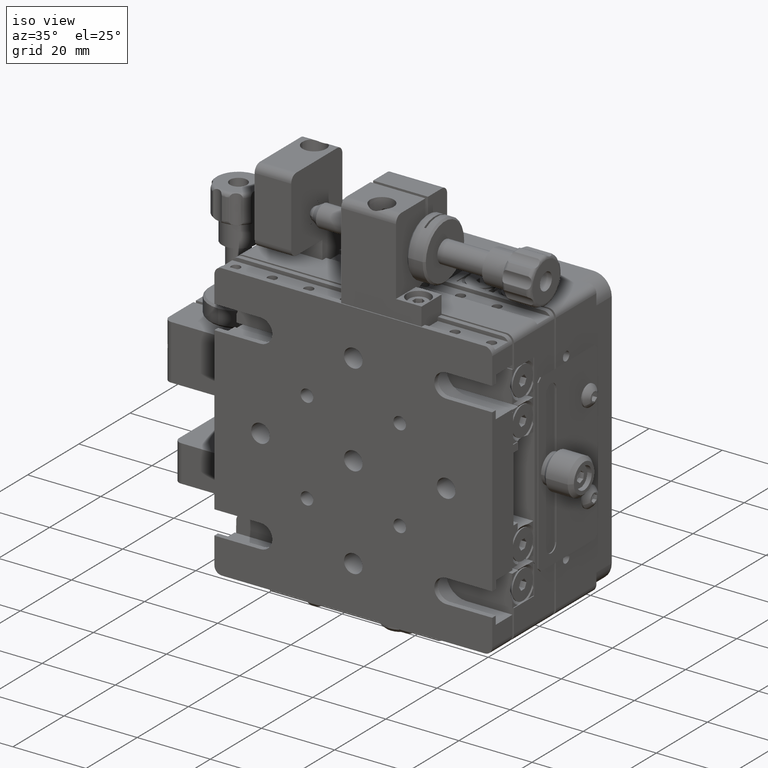
[diagram: clean part render]
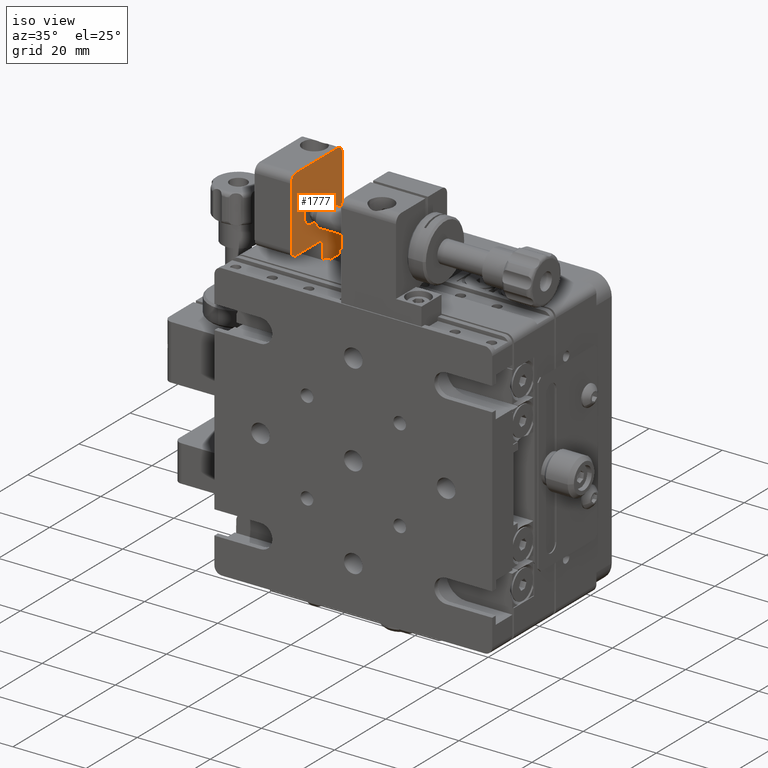
[diagram: same view with one face highlighted and labeled with its STEP entity id]
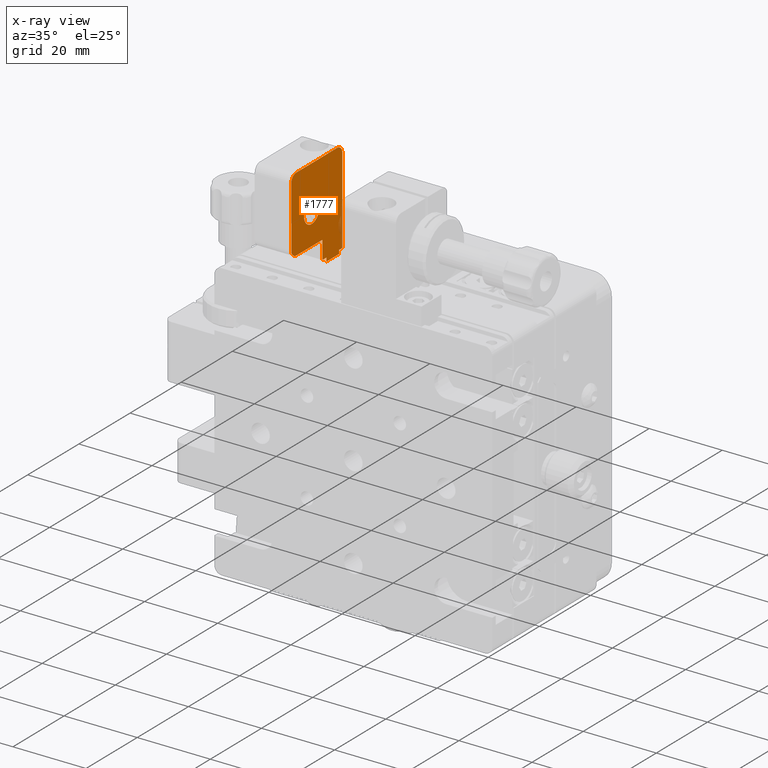
[diagram: x-ray of the same camera — body ghosted, the highlighted face saturated]
A machine part, iso view. The second image highlights one B-rep face of the part: STEP entity #1777.
The next image is the same camera in x-ray: the body ghosted, the highlighted face saturated — about 2% of this face is hidden behind the body in this view.
In plain terms, the highlighted planar face has unit normal (1, -0, -0).
Its self-contained STEP definition (entity closure, byte-faithful):
#672 = DIRECTION ( 'NONE',  ( 1.000000000000000000, -1.110223024625156000E-016, -7.227914031693551900E-019 ) ) ;
#954 = DIRECTION ( 'NONE',  ( 7.227914031695526000E-019, -5.965587692102110000E-016, 1.000000000000000000 ) ) ;
#1330 = CARTESIAN_POINT ( 'NONE',  ( -2.909046113412277400, 3.020726745679874100, 141.1500000000002300 ) ) ;
#1719 = DIRECTION ( 'NONE',  ( 0.0000000000000000000, -8.673617379884027600E-016, 1.000000000000000000 ) ) ;
#1777 = ADVANCED_FACE ( 'NONE', ( #42920, #32633 ), #26873, .T. ) ;
#2042 = CARTESIAN_POINT ( 'NONE',  ( -2.909046113412277400, -3.479273254320129000, 141.1500000000002300 ) ) ;
#2824 = VECTOR ( 'NONE', #44409, 1000.000000000000000 ) ;
#3341 = CARTESIAN_POINT ( 'NONE',  ( -2.909046113412276500, 4.320726745679887200, 141.1500000000002300 ) ) ;
#3927 = VERTEX_POINT ( 'NONE', #50291 ) ;
#4154 = VECTOR ( 'NONE', #12270, 1000.000000000000000 ) ;
#4274 = ORIENTED_EDGE ( 'NONE', *, *, #7773, .T. ) ;
#4822 = VERTEX_POINT ( 'NONE', #35021 ) ;
#4875 = ORIENTED_EDGE ( 'NONE', *, *, #24657, .T. ) ;
#4979 = DIRECTION ( 'NONE',  ( -7.227914031695526000E-019, 5.965587692102110000E-016, -1.000000000000000000 ) ) ;
#5048 = VERTEX_POINT ( 'NONE', #44249 ) ;
#5095 = EDGE_CURVE ( 'NONE', #14420, #4822, #13902, .T. ) ;
#5223 = CARTESIAN_POINT ( 'NONE',  ( -2.909046113412277800, -7.679273254320126100, 154.6500000000002000 ) ) ;
#5717 = EDGE_CURVE ( 'NONE', #17093, #35727, #47072, .T. ) ;
#5990 = VERTEX_POINT ( 'NONE', #6583 ) ;
#6583 = CARTESIAN_POINT ( 'NONE',  ( -2.909046113412278700, -13.67927325432013500, 166.6500000000001800 ) ) ;
#7512 = VECTOR ( 'NONE', #14265, 1000.000000000000000 ) ;
#7773 = EDGE_CURVE ( 'NONE', #5990, #19997, #13235, .T. ) ;
#7996 = EDGE_CURVE ( 'NONE', #28252, #14420, #39973, .T. ) ;
#8300 = LINE ( 'NONE', #28113, #18641 ) ;
#9108 = DIRECTION ( 'NONE',  ( 0.0000000000000000000, -5.782411586589351700E-016, 1.000000000000000000 ) ) ;
#9135 = VERTEX_POINT ( 'NONE', #1330 ) ;
#9166 = ORIENTED_EDGE ( 'NONE', *, *, #7996, .T. ) ;
#10218 = ORIENTED_EDGE ( 'NONE', *, *, #20978, .F. ) ;
#10355 = ORIENTED_EDGE ( 'NONE', *, *, #28498, .T. ) ;
#10460 = AXIS2_PLACEMENT_3D ( 'NONE', #15537, #42578, #19438 ) ;
#10980 = EDGE_CURVE ( 'NONE', #35727, #5990, #11045, .T. ) ;
#11045 = LINE ( 'NONE', #16248, #40751 ) ;
#11559 = CARTESIAN_POINT ( 'NONE',  ( -2.909046113412278700, -13.67927325432013300, 164.6500000000002000 ) ) ;
#11711 = ORIENTED_EDGE ( 'NONE', *, *, #12695, .T. ) ;
#12270 = DIRECTION ( 'NONE',  ( 1.110223024625154800E-016, 1.000000000000000000, 1.984337549991656100E-015 ) ) ;
#12345 = CARTESIAN_POINT ( 'NONE',  ( -2.909046113412277400, -1.979273254320128600, 141.1500000000001500 ) ) ;
#12695 = EDGE_CURVE ( 'NONE', #27006, #28252, #17827, .T. ) ;
#13235 = CIRCLE ( 'NONE', #10460, 2.000000000000001800 ) ;
#13371 = CARTESIAN_POINT ( 'NONE',  ( -2.909046113412278700, -15.67927325432013100, 164.6500000000001800 ) ) ;
#13859 = CARTESIAN_POINT ( 'NONE',  ( -2.909046113412276500, 4.320726745679887200, 141.1500000000002300 ) ) ;
#13902 = LINE ( 'NONE', #2042, #43596 ) ;
#14265 = DIRECTION ( 'NONE',  ( 7.227914031695526000E-019, -5.965587692102110000E-016, 1.000000000000000000 ) ) ;
#14420 = VERTEX_POINT ( 'NONE', #37475 ) ;
#14576 = ORIENTED_EDGE ( 'NONE', *, *, #5095, .T. ) ;
#15111 = CARTESIAN_POINT ( 'NONE',  ( -2.909046113412278700, -13.67927325432012300, 146.1500000000002000 ) ) ;
#15515 = DIRECTION ( 'NONE',  ( 7.227914031695526000E-019, -5.965587692102110000E-016, 1.000000000000000000 ) ) ;
#15537 = CARTESIAN_POINT ( 'NONE',  ( -2.909046113412278700, -13.67927325432013300, 164.6500000000002000 ) ) ;
#16160 = CARTESIAN_POINT ( 'NONE',  ( -2.909046113412276500, 4.320726745679873000, 164.6500000000001500 ) ) ;
#16248 = CARTESIAN_POINT ( 'NONE',  ( -2.909046113412277400, 2.320726745679869900, 166.6500000000001500 ) ) ;
#16264 = LINE ( 'NONE', #22632, #45956 ) ;
#16572 = EDGE_CURVE ( 'NONE', #4822, #22344, #16264, .T. ) ;
#16582 = DIRECTION ( 'NONE',  ( -1.110223024625154800E-016, -1.000000000000000000, 2.981308399991953000E-015 ) ) ;
#17093 = VERTEX_POINT ( 'NONE', #16160 ) ;
#17296 = CARTESIAN_POINT ( 'NONE',  ( -2.909046113412277800, -7.679273254320124300, 151.6500000000002000 ) ) ;
#17730 = EDGE_CURVE ( 'NONE', #44006, #17093, #8300, .T. ) ;
#17827 = CIRCLE ( 'NONE', #32901, 2.000000000000001800 ) ;
#18641 = VECTOR ( 'NONE', #954, 1000.000000000000000 ) ;
#19438 = DIRECTION ( 'NONE',  ( 0.0000000000000000000, -8.673617379884027600E-016, 1.000000000000000000 ) ) ;
#19521 = VERTEX_POINT ( 'NONE', #40635 ) ;
#19997 = VERTEX_POINT ( 'NONE', #48712 ) ;
#20607 = EDGE_CURVE ( 'NONE', #19521, #9135, #38447, .T. ) ;
#20978 = EDGE_CURVE ( 'NONE', #48695, #5048, #44419, .T. ) ;
#21542 = DIRECTION ( 'NONE',  ( 1.000000000000000000, -1.110223024625156000E-016, -7.227914031693551900E-019 ) ) ;
#21783 = EDGE_CURVE ( 'NONE', #22344, #3927, #23085, .T. ) ;
#21844 = VECTOR ( 'NONE', #4979, 1000.000000000000000 ) ;
#22344 = VERTEX_POINT ( 'NONE', #12345 ) ;
#22577 = AXIS2_PLACEMENT_3D ( 'NONE', #5223, #32326, #9108 ) ;
#22632 = CARTESIAN_POINT ( 'NONE',  ( -2.909046113412277400, -3.479273254320129000, 141.1500000000002300 ) ) ;
#23085 = LINE ( 'NONE', #32228, #21844 ) ;
#23509 = EDGE_CURVE ( 'NONE', #5048, #48695, #36012, .T. ) ;
#23930 = CARTESIAN_POINT ( 'NONE',  ( -2.909046113412277400, 2.320726745679871700, 164.6500000000001500 ) ) ;
#24657 = EDGE_CURVE ( 'NONE', #3927, #19521, #30247, .T. ) ;
#25010 = DIRECTION ( 'NONE',  ( 1.000000000000000000, -1.110223024625156000E-016, -7.227914031693551900E-019 ) ) ;
#25397 = EDGE_CURVE ( 'NONE', #19997, #27006, #33817, .T. ) ;
#25981 = EDGE_LOOP ( 'NONE', ( #45462, #10218 ) ) ;
#26338 = CARTESIAN_POINT ( 'NONE',  ( -2.909046113412277400, 2.320726745679869900, 166.6500000000001500 ) ) ;
#26873 = PLANE ( 'NONE',  #35576 ) ;
#26907 = ORIENTED_EDGE ( 'NONE', *, *, #20607, .T. ) ;
#27006 = VERTEX_POINT ( 'NONE', #29311 ) ;
#27837 = DIRECTION ( 'NONE',  ( 0.0000000000000000000, -6.505213034913020700E-016, 1.000000000000000000 ) ) ;
#28113 = CARTESIAN_POINT ( 'NONE',  ( -2.909046113412276500, 4.320726745679887200, 141.1500000000002300 ) ) ;
#28252 = VERTEX_POINT ( 'NONE', #15111 ) ;
#28498 = EDGE_CURVE ( 'NONE', #9135, #44006, #35942, .T. ) ;
#29193 = DIRECTION ( 'NONE',  ( -7.227914031695526000E-019, 5.965587692102110000E-016, -1.000000000000000000 ) ) ;
#29311 = CARTESIAN_POINT ( 'NONE',  ( -2.909046113412278700, -15.67927325432012400, 148.1500000000002000 ) ) ;
#29688 = VECTOR ( 'NONE', #32399, 1000.000000000000000 ) ;
#30247 = LINE ( 'NONE', #35539, #4154 ) ;
#31506 = AXIS2_PLACEMENT_3D ( 'NONE', #44781, #21542, #48681 ) ;
#32228 = CARTESIAN_POINT ( 'NONE',  ( -2.909046113412277400, -1.979273254320127700, 140.1500000000002000 ) ) ;
#32326 = DIRECTION ( 'NONE',  ( 1.000000000000000000, -1.110223024625156000E-016, -7.227914031693551900E-019 ) ) ;
#32399 = DIRECTION ( 'NONE',  ( 1.110223024625154800E-016, 1.000000000000000000, -5.015781888361816800E-015 ) ) ;
#32633 = FACE_OUTER_BOUND ( 'NONE', #41981, .T. ) ;
#32901 = AXIS2_PLACEMENT_3D ( 'NONE', #48173, #25010, #1719 ) ;
#33817 = LINE ( 'NONE', #13371, #2824 ) ;
#34383 = DIRECTION ( 'NONE',  ( 1.110223024625154400E-016, 1.000000000000000000, -4.681921624082249700E-014 ) ) ;
#35021 = CARTESIAN_POINT ( 'NONE',  ( -2.909046113412277400, -3.479273254320129000, 141.1500000000002300 ) ) ;
#35539 = CARTESIAN_POINT ( 'NONE',  ( -2.909046113412277400, 3.020726745679874100, 140.1500000000002000 ) ) ;
#35576 = AXIS2_PLACEMENT_3D ( 'NONE', #11559, #38686, #15515 ) ;
#35727 = VERTEX_POINT ( 'NONE', #26338 ) ;
#35942 = LINE ( 'NONE', #13859, #46237 ) ;
#36012 = CIRCLE ( 'NONE', #31506, 3.000000000000002700 ) ;
#36337 = CARTESIAN_POINT ( 'NONE',  ( -2.909046113412278700, -13.67927325432012300, 146.1500000000002000 ) ) ;
#37101 = DIRECTION ( 'NONE',  ( 1.110223024625154800E-016, 1.000000000000000000, 5.965587692102107000E-016 ) ) ;
#37475 = CARTESIAN_POINT ( 'NONE',  ( -2.909046113412277400, -3.479273254320131700, 146.1500000000001500 ) ) ;
#38447 = LINE ( 'NONE', #41352, #7512 ) ;
#38536 = ORIENTED_EDGE ( 'NONE', *, *, #25397, .T. ) ;
#38686 = DIRECTION ( 'NONE',  ( 1.000000000000000000, -1.110223024625156000E-016, -7.227914031696188500E-019 ) ) ;
#39973 = LINE ( 'NONE', #36337, #29688 ) ;
#40635 = CARTESIAN_POINT ( 'NONE',  ( -2.909046113412277400, 3.020726745679874100, 140.1500000000002000 ) ) ;
#40751 = VECTOR ( 'NONE', #16582, 1000.000000000000000 ) ;
#41352 = CARTESIAN_POINT ( 'NONE',  ( -2.909046113412277400, 3.020726745679874100, 140.1500000000002000 ) ) ;
#41981 = EDGE_LOOP ( 'NONE', ( #4274, #38536, #11711, #9166, #14576, #47493, #44017, #4875, #26907, #10355, #46421, #44809, #48392 ) ) ;
#42578 = DIRECTION ( 'NONE',  ( 1.000000000000000000, -1.110223024625156000E-016, -7.227914031693551900E-019 ) ) ;
#42920 = FACE_BOUND ( 'NONE', #25981, .T. ) ;
#43596 = VECTOR ( 'NONE', #29193, 1000.000000000000000 ) ;
#44006 = VERTEX_POINT ( 'NONE', #3341 ) ;
#44017 = ORIENTED_EDGE ( 'NONE', *, *, #21783, .T. ) ;
#44249 = CARTESIAN_POINT ( 'NONE',  ( -2.909046113412277800, -7.679273254320127900, 157.6500000000002000 ) ) ;
#44409 = DIRECTION ( 'NONE',  ( -7.227914031695526000E-019, 5.965587692102110000E-016, -1.000000000000000000 ) ) ;
#44419 = CIRCLE ( 'NONE', #22577, 3.000000000000002700 ) ;
#44781 = CARTESIAN_POINT ( 'NONE',  ( -2.909046113412277800, -7.679273254320126100, 154.6500000000002000 ) ) ;
#44809 = ORIENTED_EDGE ( 'NONE', *, *, #5717, .T. ) ;
#44986 = AXIS2_PLACEMENT_3D ( 'NONE', #23930, #672, #27837 ) ;
#45462 = ORIENTED_EDGE ( 'NONE', *, *, #23509, .F. ) ;
#45956 = VECTOR ( 'NONE', #34383, 1000.000000000000000 ) ;
#46237 = VECTOR ( 'NONE', #37101, 1000.000000000000000 ) ;
#46421 = ORIENTED_EDGE ( 'NONE', *, *, #17730, .T. ) ;
#47072 = CIRCLE ( 'NONE', #44986, 2.000000000000001800 ) ;
#47493 = ORIENTED_EDGE ( 'NONE', *, *, #16572, .T. ) ;
#48173 = CARTESIAN_POINT ( 'NONE',  ( -2.909046113412278700, -13.67927325432012400, 148.1500000000002000 ) ) ;
#48392 = ORIENTED_EDGE ( 'NONE', *, *, #10980, .T. ) ;
#48681 = DIRECTION ( 'NONE',  ( 0.0000000000000000000, -5.782411586589351700E-016, 1.000000000000000000 ) ) ;
#48695 = VERTEX_POINT ( 'NONE', #17296 ) ;
#48712 = CARTESIAN_POINT ( 'NONE',  ( -2.909046113412278700, -15.67927325432013100, 164.6500000000001800 ) ) ;
#50291 = CARTESIAN_POINT ( 'NONE',  ( -2.909046113412277400, -1.979273254320127700, 140.1500000000002000 ) ) ;